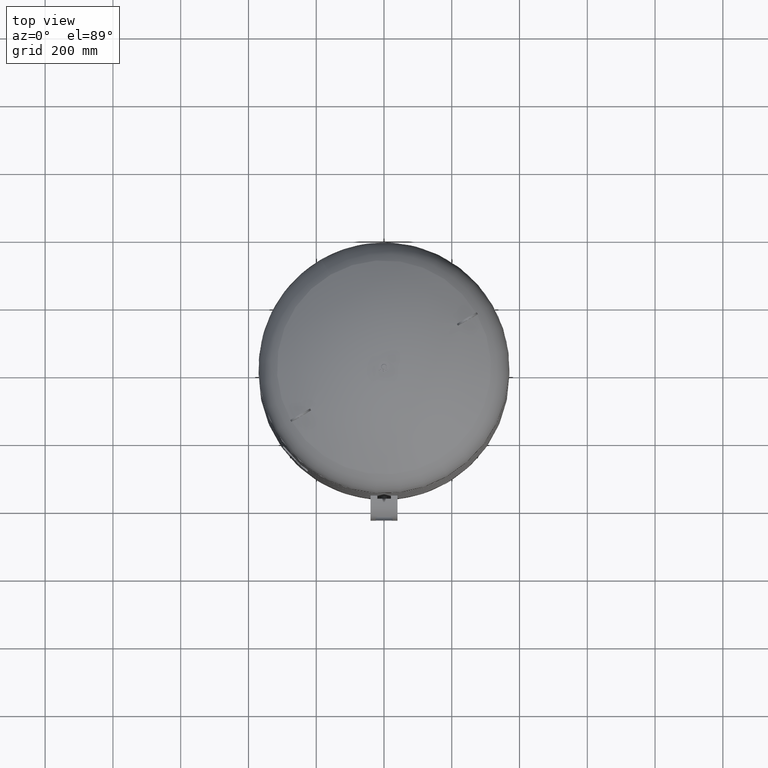
[diagram: clean part render]
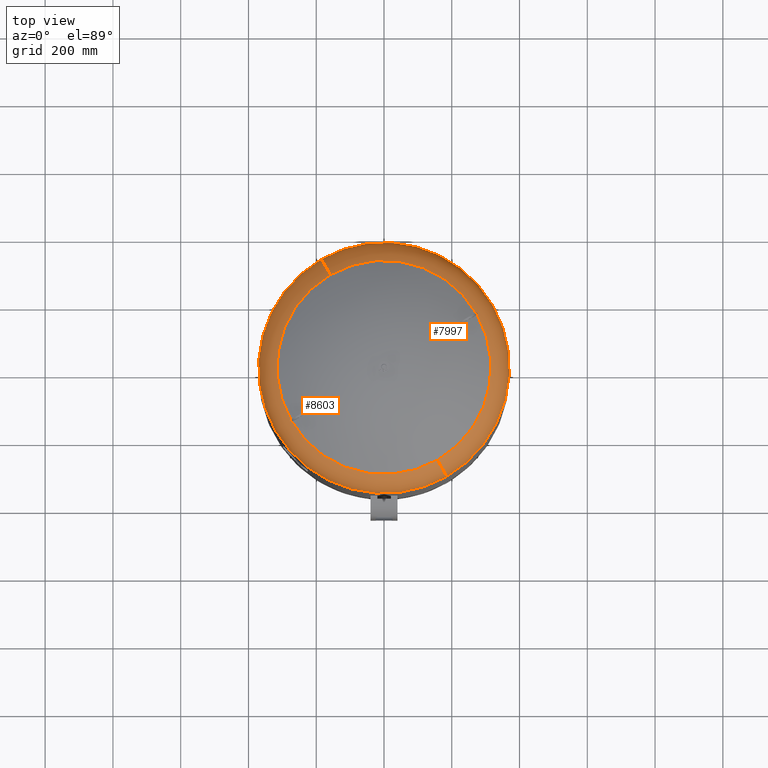
[diagram: same view with one multi-face feature highlighted, each face labeled with its STEP entity id]
A machine part, top view. The highlighted faces form ONE feature: a constant-radius fillet chain: 2 tangent blend faces with common blend radius 115.5 mm. The faces share edges in the B-rep.
Their STEP definitions:
[1] entity #7997 (Torus):
#7902=CARTESIAN_POINT('',(320.429399400242350,184.999999999999940,1641.206120388130300));
#7903=VERTEX_POINT('',#7902);
#7927=CARTESIAN_POINT('',(-184.999999999999970,320.429399400242350,1641.206120388130300));
#7928=VERTEX_POINT('',#7927);
#7936=CARTESIAN_POINT('',(-2.682575E-015,-4.159481E-014,1641.206120388130600));
#7937=DIRECTION('',(-1.060575E-016,-6.123234E-017,-1.000000000000000));
#7938=DIRECTION('',(0.866025403784439,0.500000000000000,-1.224647E-016));
#7939=AXIS2_PLACEMENT_3D('',#7936,#7937,#7938);
#7940=CIRCLE('',#7939,370.0);
#7941=EDGE_CURVE('',#7928,#7903,#7940,.T.);
#7946=CARTESIAN_POINT('',(-2.682575E-015,-4.159481E-014,1641.206120388130300));
#7947=DIRECTION('',(-1.420901E-017,-2.203186E-016,-1.0));
#7948=DIRECTION('',(0.500000000000000,-0.866025403784439,1.836970E-016));
#7949=AXIS2_PLACEMENT_3D('',#7946,#7947,#7948);
#7950=TOROIDAL_SURFACE('',#7949,254.500000000000030,115.500000000000000);
#7951=CARTESIAN_POINT('',(185.0,-320.429399400242400,1641.206120388130600));
#7952=VERTEX_POINT('',#7951);
#7953=CARTESIAN_POINT('',(157.965517241379270,-273.604301705966460,1739.014494274920500));
#7954=VERTEX_POINT('',#7953);
#7955=CARTESIAN_POINT('',(127.249999999999970,-220.403465263139680,1641.206120388130300));
#7956=DIRECTION('',(-0.866025403784439,-0.500000000000000,1.224647E-016));
#7957=DIRECTION('',(0.500000000000000,-0.866025403784439,0.0));
#7958=AXIS2_PLACEMENT_3D('',#7955,#7956,#7957);
#7959=CIRCLE('',#7958,115.499999999999990);
#7960=EDGE_CURVE('',#7952,#7954,#7959,.T.);
#7961=ORIENTED_EDGE('',*,*,#7960,.F.);
#7962=CARTESIAN_POINT('',(-2.682575E-015,-4.159481E-014,1641.206120388130600));
#7963=DIRECTION('',(-1.060575E-016,-6.123234E-017,-1.000000000000000));
#7964=DIRECTION('',(0.866025403784439,0.500000000000000,-1.224647E-016));
#7965=AXIS2_PLACEMENT_3D('',#7962,#7963,#7964);
#7966=CIRCLE('',#7965,370.0);
#7967=EDGE_CURVE('',#7903,#7952,#7966,.T.);
#7968=ORIENTED_EDGE('',*,*,#7967,.F.);
#7969=ORIENTED_EDGE('',*,*,#7941,.F.);
#7970=CARTESIAN_POINT('',(-157.965517241379250,273.604301705966410,1739.014494274920300));
#7971=VERTEX_POINT('',#7970);
#7972=CARTESIAN_POINT('',(-127.249999999999970,220.403465263139680,1641.206120388130300));
#7973=DIRECTION('',(0.866025403784439,0.500000000000000,-1.224647E-016));
#7974=DIRECTION('',(-0.500000000000000,0.866025403784439,0.0));
#7975=AXIS2_PLACEMENT_3D('',#7972,#7973,#7974);
#7976=CIRCLE('',#7975,115.500000000000010);
#7977=EDGE_CURVE('',#7928,#7971,#7976,.T.);
#7978=ORIENTED_EDGE('',*,*,#7977,.T.);
#7979=CARTESIAN_POINT('',(273.604301705966460,157.965517241379250,1739.014494274920500));
#7980=VERTEX_POINT('',#7979);
#7981=CARTESIAN_POINT('',(-1.292814E-015,-2.004580E-014,1739.014494274920500));
#7982=DIRECTION('',(-1.060575E-016,-6.123234E-017,-1.0));
#7983=DIRECTION('',(0.866025403784439,0.500000000000000,-1.224647E-016));
#7984=AXIS2_PLACEMENT_3D('',#7981,#7982,#7983);
#7985=CIRCLE('',#7984,315.931034482758610);
#7986=EDGE_CURVE('',#7971,#7980,#7985,.T.);
#7987=ORIENTED_EDGE('',*,*,#7986,.T.);
#7988=CARTESIAN_POINT('',(-1.292814E-015,-2.004580E-014,1739.014494274920500));
#7989=DIRECTION('',(-1.060575E-016,-6.123234E-017,-1.0));
#7990=DIRECTION('',(0.866025403784439,0.500000000000000,-1.224647E-016));
#7991=AXIS2_PLACEMENT_3D('',#7988,#7989,#7990);
#7992=CIRCLE('',#7991,315.931034482758610);
#7993=EDGE_CURVE('',#7980,#7954,#7992,.T.);
#7994=ORIENTED_EDGE('',*,*,#7993,.T.);
#7995=EDGE_LOOP('',(#7961,#7968,#7969,#7978,#7987,#7994));
#7996=FACE_OUTER_BOUND('',#7995,.T.);
#7997=ADVANCED_FACE('',(#7996),#7950,.T.);
[2] entity #8603 (Torus):
#7919=CARTESIAN_POINT('',(-320.429399400242350,-184.999999999999970,1641.206120388130600));
#7920=VERTEX_POINT('',#7919);
#7927=CARTESIAN_POINT('',(-184.999999999999970,320.429399400242350,1641.206120388130300));
#7928=VERTEX_POINT('',#7927);
#7929=CARTESIAN_POINT('',(-2.682575E-015,-4.159481E-014,1641.206120388130600));
#7930=DIRECTION('',(-1.060575E-016,-6.123234E-017,-1.000000000000000));
#7931=DIRECTION('',(0.866025403784439,0.500000000000000,-1.224647E-016));
#7932=AXIS2_PLACEMENT_3D('',#7929,#7930,#7931);
#7933=CIRCLE('',#7932,370.0);
#7934=EDGE_CURVE('',#7920,#7928,#7933,.T.);
#7951=CARTESIAN_POINT('',(185.0,-320.429399400242400,1641.206120388130600));
#7952=VERTEX_POINT('',#7951);
#7953=CARTESIAN_POINT('',(157.965517241379270,-273.604301705966460,1739.014494274920500));
#7954=VERTEX_POINT('',#7953);
#7955=CARTESIAN_POINT('',(127.249999999999970,-220.403465263139680,1641.206120388130300));
#7956=DIRECTION('',(-0.866025403784439,-0.500000000000000,1.224647E-016));
#7957=DIRECTION('',(0.500000000000000,-0.866025403784439,0.0));
#7958=AXIS2_PLACEMENT_3D('',#7955,#7956,#7957);
#7959=CIRCLE('',#7958,115.499999999999990);
#7960=EDGE_CURVE('',#7952,#7954,#7959,.T.);
#7970=CARTESIAN_POINT('',(-157.965517241379250,273.604301705966410,1739.014494274920300));
#7971=VERTEX_POINT('',#7970);
#7972=CARTESIAN_POINT('',(-127.249999999999970,220.403465263139680,1641.206120388130300));
#7973=DIRECTION('',(0.866025403784439,0.500000000000000,-1.224647E-016));
#7974=DIRECTION('',(-0.500000000000000,0.866025403784439,0.0));
#7975=AXIS2_PLACEMENT_3D('',#7972,#7973,#7974);
#7976=CIRCLE('',#7975,115.500000000000010);
#7977=EDGE_CURVE('',#7928,#7971,#7976,.T.);
#8575=CARTESIAN_POINT('',(-1.292814E-015,-2.004580E-014,1739.014494274920500));
#8576=DIRECTION('',(-1.060575E-016,-6.123234E-017,-1.0));
#8577=DIRECTION('',(0.866025403784439,0.500000000000000,-1.224647E-016));
#8578=AXIS2_PLACEMENT_3D('',#8575,#8576,#8577);
#8579=CIRCLE('',#8578,315.931034482758610);
#8580=EDGE_CURVE('',#7954,#7971,#8579,.T.);
#8585=CARTESIAN_POINT('',(-2.682575E-015,-4.159481E-014,1641.206120388130300));
#8586=DIRECTION('',(-1.420901E-017,-2.203186E-016,-1.0));
#8587=DIRECTION('',(0.500000000000000,-0.866025403784439,1.836970E-016));
#8588=AXIS2_PLACEMENT_3D('',#8585,#8586,#8587);
#8589=TOROIDAL_SURFACE('',#8588,254.500000000000030,115.500000000000000);
#8590=ORIENTED_EDGE('',*,*,#7960,.T.);
#8591=ORIENTED_EDGE('',*,*,#8580,.T.);
#8592=ORIENTED_EDGE('',*,*,#7977,.F.);
#8593=ORIENTED_EDGE('',*,*,#7934,.F.);
#8594=CARTESIAN_POINT('',(-2.682575E-015,-4.159481E-014,1641.206120388130600));
#8595=DIRECTION('',(-1.060575E-016,-6.123234E-017,-1.000000000000000));
#8596=DIRECTION('',(0.866025403784439,0.500000000000000,-1.224647E-016));
#8597=AXIS2_PLACEMENT_3D('',#8594,#8595,#8596);
#8598=CIRCLE('',#8597,370.0);
#8599=EDGE_CURVE('',#7952,#7920,#8598,.T.);
#8600=ORIENTED_EDGE('',*,*,#8599,.F.);
#8601=EDGE_LOOP('',(#8590,#8591,#8592,#8593,#8600));
#8602=FACE_OUTER_BOUND('',#8601,.T.);
#8603=ADVANCED_FACE('',(#8602),#8589,.T.);